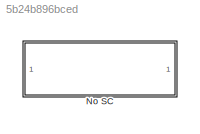
MODEL slx_5b24b896bced
KIND model
CONFIG AbsTol = auto
CONFIG EnableMultiTasking = off
CONFIG FixedStep = auto
CONFIG MaxStep = auto
CONFIG MinStep = auto
CONFIG RelTol = 1e-3
CONFIG SampleTimeConstraint = Unconstrained
CONFIG SolverName = VariableStepAuto
CONFIG StartTime = 0.0
CONFIG StopTime = 10.0
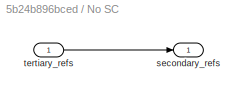
BLOCK [SubSystem] No SC
  NameLocation = top
  VariantControl = No SC
BLOCK [Outport] No SC/secondary_refs
BLOCK [Inport] No SC/tertiary_refs
LINE No SC/tertiary_refs:1 -> No SC/secondary_refs:1
